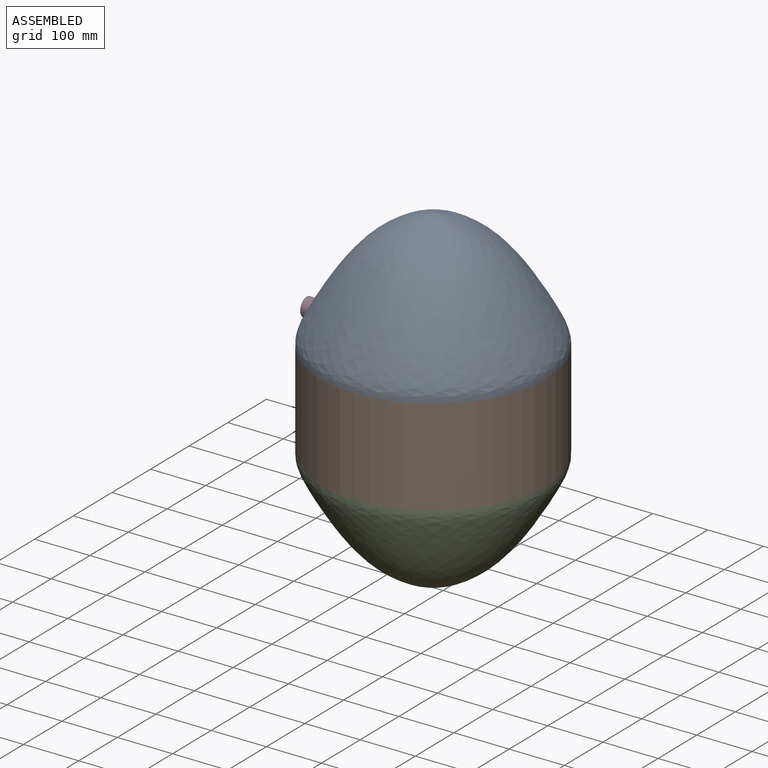
[diagram: assembled view]
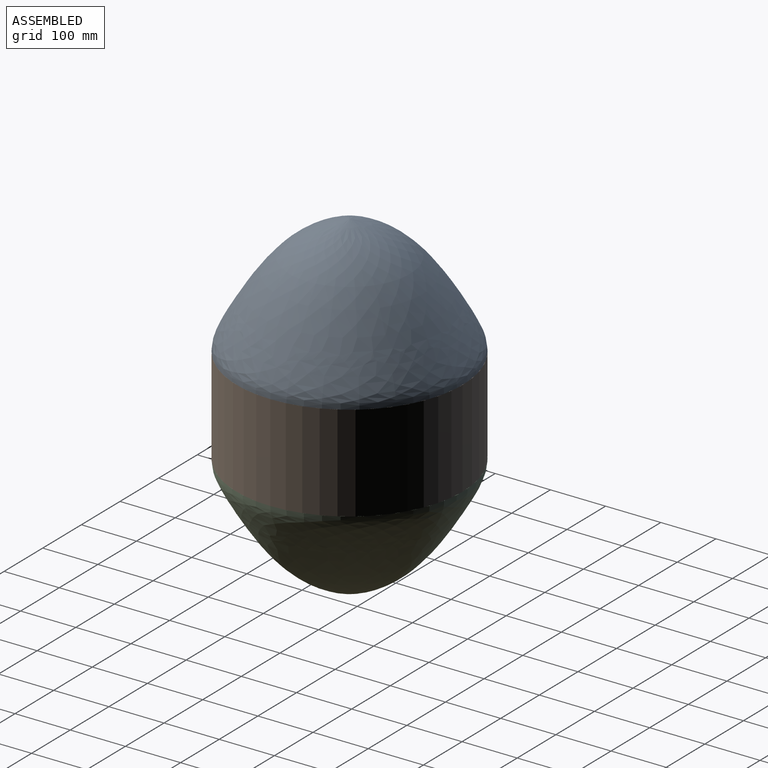
[diagram: assembled view, second angle]
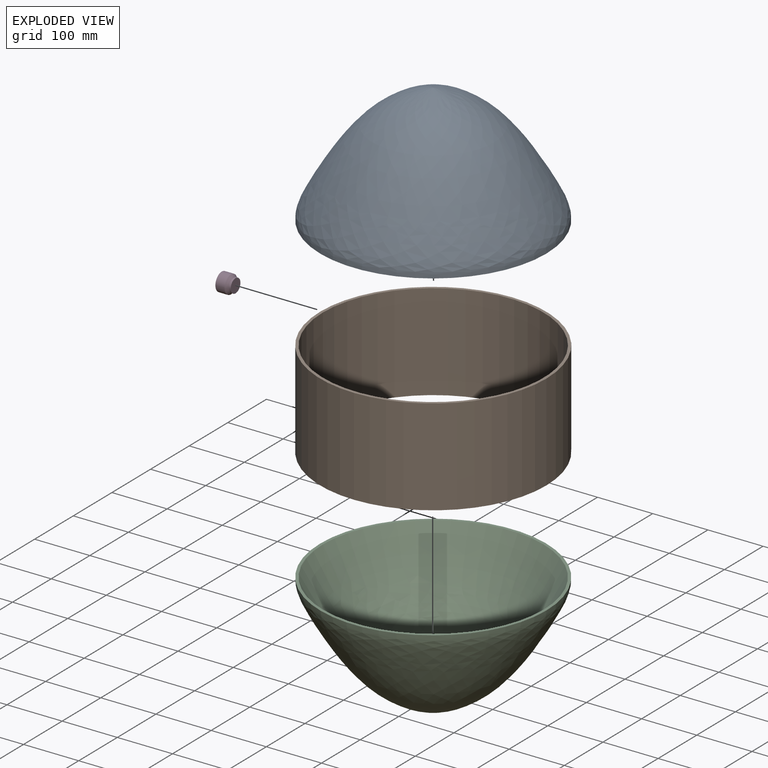
[diagram: exploded view]
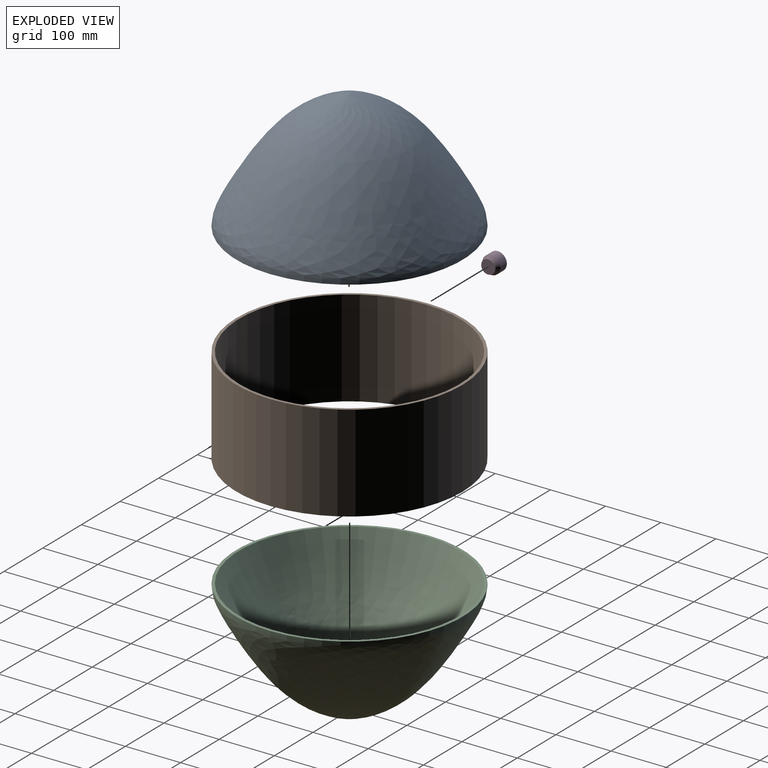
[diagram: exploded view, second angle]
ASSEMBLY  parts=4 mates=2
PART A: 3 faces, bbox 410x410x217 mm
  f0: revolved ~400x400mm, area 213943.3mm2, adj f1
  f1: plane 410x410mm, normal (0,0,-1), area 6361.7mm2, adj f0,f2
  f2: revolved ~410x410mm, area 236897.5mm2, adj f1
PART B: 4 faces, bbox 410x410x175 mm
  f0: cylinder r=200mm len=400mm, axis (0,0,-1), area 219911.5mm2, adj f1,f3
  f1: plane 410x410mm, normal (0,0,-1), area 6361.7mm2, adj f0,f2
  f2: cylinder r=205mm len=410mm, axis (0,0,-1), area 225409.3mm2, adj f1,f3
  f3: plane 410x410mm, normal (0,0,1), area 6361.7mm2, adj f0,f2
PART C: same geometry as A
PART D: 6 faces, bbox 32.8x32.8x25.1 mm
  f0: cylinder r=16.39mm len=32.78mm, axis (0,0,1), area 1725.2mm2, adj f1,f5
  f1: plane 32.78x32.78mm, normal (0,0,1), area 844mm2, adj f0
  f2: plane 25x25mm, normal (0,0,-1), area 490.9mm2, adj f3
  f3: cylinder r=12.5mm len=25mm, axis (0,0,1), area 196.3mm2, adj f2,f4
  f4: revolved ~25.03x25.03mm, area 296.1mm2, adj f3,f5
  f5: cone r=12.51mm half-angle=49.3deg, axis (0,0,1), area 464.4mm2, adj f0,f4
PLACE A t=(-156.27,-173.2,-124.47)mm
PLACE B t=(-156.27,-173.2,-299.47)mm
PLACE C rot(axis=(0,1,0),180deg) t=(-156.27,-173.2,-299.47)mm
PLACE D rot(axis=(0,-1,0),90deg) t=(-361.03,-173,-122.98)mm
MATE planar A.f1 <-> B.f0  axis (0,0,-1) through (-156.27,-173.2,-124.47)mm
MATE planar C.f1 <-> B.f0  axis (0,0,1) through (-156.27,-173.2,-299.47)mm
